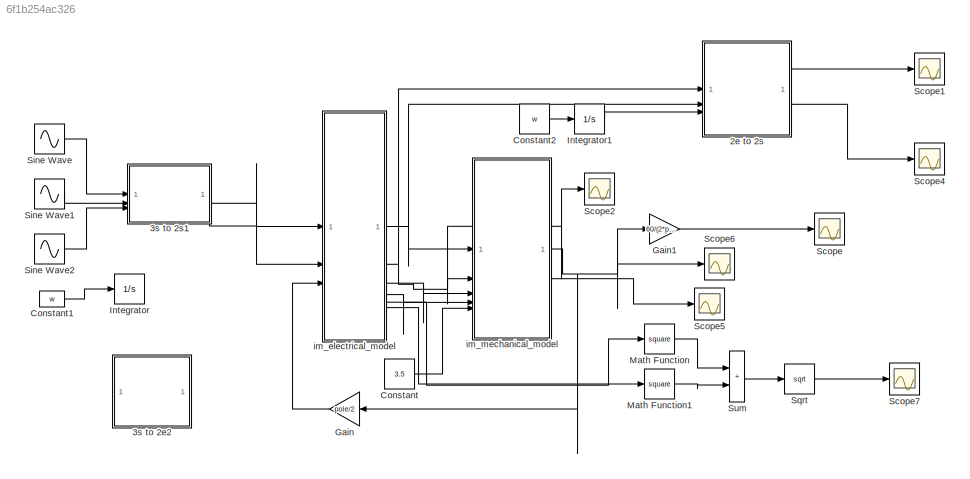
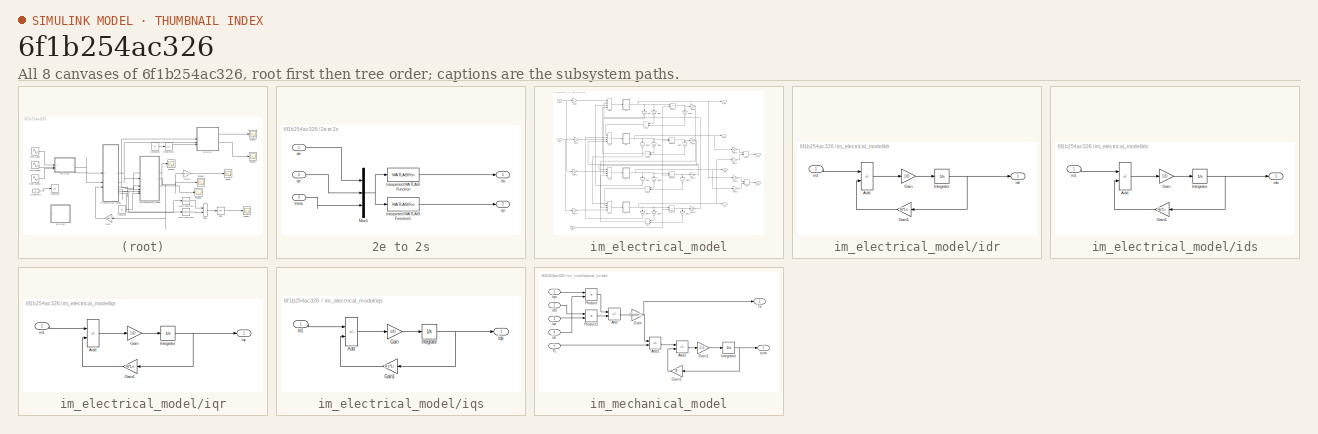
[diagram: thumbnail index - all 8 canvases of the model, root first then tree order]
MODEL slx_6f1b254ac326
KIND model
CONFIG AbsTol = auto
CONFIG EnableMultiTasking = off
CONFIG FixedStep = auto
CONFIG MaxStep = auto
CONFIG MinStep = auto
CONFIG RelTol = 1e-3
CONFIG SampleTimeConstraint = Unconstrained
CONFIG SolverName = VariableStepAuto
CONFIG StartTime = 0.0
CONFIG StopTime = 0.5
BLOCK [SubSystem] 2e to 2s
BLOCK [MATLABFcn] 2e to 2s/Interpreted MATLAB Function
  MATLABFcn = cos(u(3))*u(1)-sin(u(3))*u(2)
BLOCK [MATLABFcn] 2e to 2s/Interpreted MATLAB Function1
  MATLABFcn = sin(u(3))*u(1)+cos(u(3))*u(2)
BLOCK [Mux] 2e to 2s/Mux1
  DisplayOption = bar
  Inputs = 3
BLOCK [Inport] 2e to 2s/de
BLOCK [Outport] 2e to 2s/ds
BLOCK [Inport] 2e to 2s/qe
  Port = 2
BLOCK [Outport] 2e to 2s/qs
  Port = 2
BLOCK [Inport] 2e to 2s/theta
  Port = 3
BLOCK [SubSystem] 3s to 2e2
  PortSchema = {"entries":[{"content":{"sides":[{"content":{"connectorIds":["In1","In2","In3","In4"]},"type":"ConnectorPlacement.EquallySpacedRectSide","uuid":"f133be33-91f9-49ed-9811-9ea3b8c2cc59"},{"content":{"connectorIds":["Out2","Out1","Out3"],"side":"RIGHT"},"type":"ConnectorPlacement.EquallySpacedRectSide","uuid":"fabe9076-6ecf-4b28-bd28-ced1febe4377"},{"content":{"connectorIds":[],"side":"TOP"},"type":"C...<+272ch>
  ReferencedSubsystem = s3s_to_2e
BLOCK [SubSystem] 3s to 2s1
  ReferencedSubsystem = s3s_to_2s
BLOCK [Constant] Constant
  Value = 3.5
BLOCK [Constant] Constant1
  Value = w
BLOCK [Constant] Constant2
  Value = w
BLOCK [Gain] Gain
  Gain = pole/2
  NameLocation = top
BLOCK [Gain] Gain1
  Gain = 60/(2*pi)
BLOCK [Integrator] Integrator
BLOCK [Integrator] Integrator1
BLOCK [Math] Math Function
  Operator = square
BLOCK [Math] Math Function1
  Operator = square
BLOCK [Scope] Scope
  Floating = off
  NumInputPorts = 1
  ScopeSpecificationString = Simulink.scopes.TimeScopeBlockCfg('CurrentConfiguration', extmgr.ConfigurationSet(extmgr.Configuration('Core','General UI',true),extmgr.Configuration('Core','Source UI',true),extmgr.Configuration('Sources','WiredSimulink',true),extmgr.Configuration('Visuals','Time Domain',true,'SerializedDisplays',{struct('MinYLimReal','-233.05606','MaxYLimReal','2077.26704','YLabelReal','','MinYLimMag',' 0.00000'...<+1372ch>
BLOCK [Scope] Scope1
  Floating = off
  NumInputPorts = 1
  ScopeSpecificationString = Simulink.scopes.TimeScopeBlockCfg('CurrentConfiguration', extmgr.ConfigurationSet(extmgr.Configuration('Core','General UI',true),extmgr.Configuration('Core','Source UI',true),extmgr.Configuration('Sources','WiredSimulink',true,'DataLoggingVariableName','ScopeData1'),extmgr.Configuration('Visuals','Time Domain',true,'SerializedDisplays',{struct('MinYLimReal','-17.76493','MaxYLimReal','61.32138','YL...<+1404ch>
BLOCK [Scope] Scope2
  Floating = off
  NumInputPorts = 1
  ScopeSpecificationString = Simulink.scopes.TimeScopeBlockCfg('CurrentConfiguration', extmgr.ConfigurationSet(extmgr.Configuration('Core','General UI',true),extmgr.Configuration('Core','Source UI',true),extmgr.Configuration('Sources','WiredSimulink',true,'DataLoggingVariableName','ScopeData2'),extmgr.Configuration('Visuals','Time Domain',true,'SerializedDisplays',{struct('MinYLimReal','-41.87321','MaxYLimReal','9.03351','YLa...<+1384ch>
BLOCK [Scope] Scope4
  Floating = off
  NumInputPorts = 1
  ScopeSpecificationString = Simulink.scopes.TimeScopeBlockCfg('CurrentConfiguration', extmgr.ConfigurationSet(extmgr.Configuration('Core','General UI',true),extmgr.Configuration('Core','Source UI',true),extmgr.Configuration('Sources','WiredSimulink',true,'DataLoggingVariableName','ScopeData4'),extmgr.Configuration('Visuals','Time Domain',true,'SerializedDisplays',{struct('MinYLimReal','-123.73977','MaxYLimReal','130.51467','...<+1412ch>
BLOCK [Scope] Scope5
  Floating = off
  NumInputPorts = 1
  ScopeSpecificationString = Simulink.scopes.TimeScopeBlockCfg('CurrentConfiguration', extmgr.ConfigurationSet(extmgr.Configuration('Core','General UI',true),extmgr.Configuration('Core','Source UI',true),extmgr.Configuration('Sources','WiredSimulink',true,'DataLoggingVariableName','ScopeData5'),extmgr.Configuration('Visuals','Time Domain',true,'SerializedDisplays',{struct('MinYLimReal','-8.13075','MaxYLimReal','27.28306','YLa...<+1413ch>
BLOCK [Scope] Scope6
  Floating = off
  NumInputPorts = 1
  ScopeSpecificationString = Simulink.scopes.TimeScopeBlockCfg('CurrentConfiguration', extmgr.ConfigurationSet(extmgr.Configuration('Core','General UI',true),extmgr.Configuration('Core','Source UI',true),extmgr.Configuration('Sources','WiredSimulink',true,'DataLoggingVariableName','ScopeData6'),extmgr.Configuration('Visuals','Time Domain',true,'SerializedDisplays',{struct('MinYLimReal','-24.37549','MaxYLimReal','219.37938','Y...<+1419ch>
BLOCK [Scope] Scope7
  Floating = off
  NumInputPorts = 1
  ScopeSpecificationString = Simulink.scopes.TimeScopeBlockCfg('CurrentConfiguration', extmgr.ConfigurationSet(extmgr.Configuration('Core','General UI',true),extmgr.Configuration('Core','Source UI',true),extmgr.Configuration('Sources','WiredSimulink',true,'DataLoggingVariableName','ScopeData1'),extmgr.Configuration('Visuals','Time Domain',true,'SerializedDisplays',{struct('MinYLimReal','-0.09842','MaxYLimReal','0.88579','YLab...<+1392ch>
BLOCK [Sin] Sine Wave
  Amplitude = 220*1.414
  Frequency = 60*2*pi
BLOCK [Sin] Sine Wave1
  Amplitude = 220*1.414
  Frequency = 60*2*pi
  Phase = -2*pi/3
BLOCK [Sin] Sine Wave2
  Amplitude = 220*1.414
  Frequency = 60*2*pi
  Phase = 2*pi/3
BLOCK [Sqrt] Sqrt
BLOCK [Sum] Sum
  IconShape = rectangular
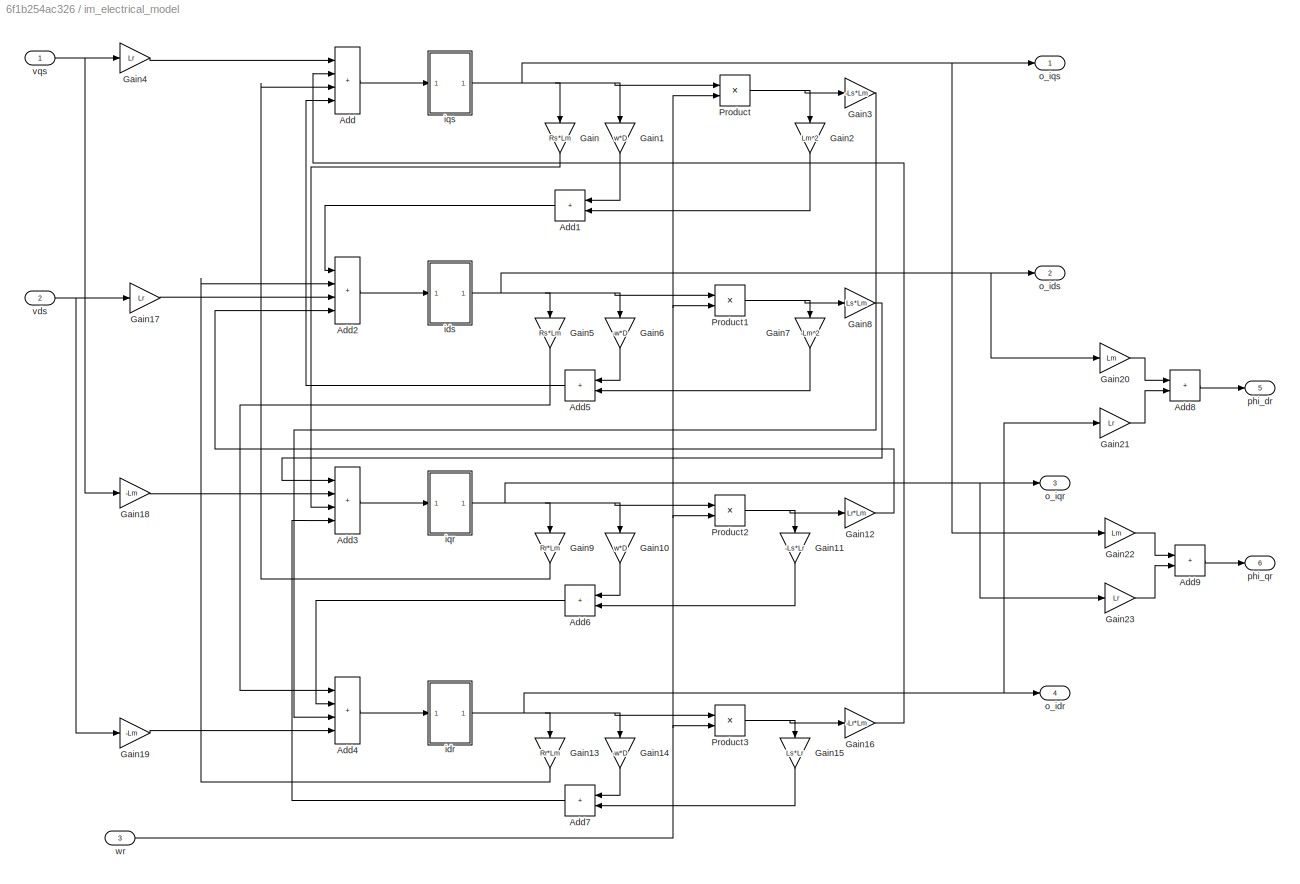
BLOCK [SubSystem] im_electrical_model
BLOCK [Sum] im_electrical_model/Add
  IconShape = rectangular
  Inputs = ++++
BLOCK [Sum] im_electrical_model/Add1
  IconShape = rectangular
  NameLocation = top
BLOCK [Sum] im_electrical_model/Add2
  IconShape = rectangular
  Inputs = ++++
BLOCK [Sum] im_electrical_model/Add3
  IconShape = rectangular
  Inputs = ++++
BLOCK [Sum] im_electrical_model/Add4
  IconShape = rectangular
  Inputs = ++++
BLOCK [Sum] im_electrical_model/Add5
  IconShape = rectangular
  NameLocation = top
BLOCK [Sum] im_electrical_model/Add6
  IconShape = rectangular
  NameLocation = top
BLOCK [Sum] im_electrical_model/Add7
  IconShape = rectangular
  NameLocation = top
BLOCK [Sum] im_electrical_model/Add8
  IconShape = rectangular
BLOCK [Sum] im_electrical_model/Add9
  IconShape = rectangular
BLOCK [Gain] im_electrical_model/Gain
  Gain = Rs*Lm
  NameLocation = left
BLOCK [Gain] im_electrical_model/Gain1
  Gain = w*D
  NameLocation = left
BLOCK [Gain] im_electrical_model/Gain10
  Gain = w*D
  NameLocation = left
BLOCK [Gain] im_electrical_model/Gain11
  Gain = -Ls*Lr
  NameLocation = left
BLOCK [Gain] im_electrical_model/Gain12
  Gain = Lr*Lm
BLOCK [Gain] im_electrical_model/Gain13
  Gain = Rr*Lm
  NameLocation = left
BLOCK [Gain] im_electrical_model/Gain14
  Gain = -w*D
  NameLocation = left
BLOCK [Gain] im_electrical_model/Gain15
  Gain = Ls*Lr
  NameLocation = left
BLOCK [Gain] im_electrical_model/Gain16
  Gain = -Lr*Lm
BLOCK [Gain] im_electrical_model/Gain17
  Gain = Lr
BLOCK [Gain] im_electrical_model/Gain18
  Gain = -Lm
BLOCK [Gain] im_electrical_model/Gain19
  Gain = -Lm
BLOCK [Gain] im_electrical_model/Gain2
  Gain = Lm^2
  NameLocation = left
BLOCK [Gain] im_electrical_model/Gain20
  Gain = Lm
BLOCK [Gain] im_electrical_model/Gain21
  Gain = Lr
BLOCK [Gain] im_electrical_model/Gain22
  Gain = Lm
BLOCK [Gain] im_electrical_model/Gain23
  Gain = Lr
BLOCK [Gain] im_electrical_model/Gain3
  Gain = -Ls*Lm
BLOCK [Gain] im_electrical_model/Gain4
  Gain = Lr
BLOCK [Gain] im_electrical_model/Gain5
  Gain = Rs*Lm
  NameLocation = left
BLOCK [Gain] im_electrical_model/Gain6
  Gain = -w*D
  NameLocation = left
BLOCK [Gain] im_electrical_model/Gain7
  Gain = -Lm^2
  NameLocation = left
BLOCK [Gain] im_electrical_model/Gain8
  Gain = Ls*Lm
BLOCK [Gain] im_electrical_model/Gain9
  Gain = Rr*Lm
  NameLocation = left
BLOCK [Product] im_electrical_model/Product
BLOCK [Product] im_electrical_model/Product1
BLOCK [Product] im_electrical_model/Product2
BLOCK [Product] im_electrical_model/Product3
BLOCK [SubSystem] im_electrical_model/idr
BLOCK [Sum] im_electrical_model/idr/Add
  IconShape = rectangular
  Inputs = +-
BLOCK [Gain] im_electrical_model/idr/Gain
  Gain = 1/D
BLOCK [Gain] im_electrical_model/idr/Gain1
  Gain = Rr*Ls
  NameLocation = top
BLOCK [Integrator] im_electrical_model/idr/Integrator
BLOCK [Outport] im_electrical_model/idr/idr
BLOCK [Inport] im_electrical_model/idr/in1
BLOCK [SubSystem] im_electrical_model/ids
BLOCK [Sum] im_electrical_model/ids/Add
  IconShape = rectangular
  Inputs = +-
BLOCK [Gain] im_electrical_model/ids/Gain
  Gain = 1/D
BLOCK [Gain] im_electrical_model/ids/Gain1
  Gain = Rs*Lr
  NameLocation = top
BLOCK [Integrator] im_electrical_model/ids/Integrator
BLOCK [Outport] im_electrical_model/ids/ids
BLOCK [Inport] im_electrical_model/ids/in1
BLOCK [SubSystem] im_electrical_model/iqr
BLOCK [Sum] im_electrical_model/iqr/Add
  IconShape = rectangular
  Inputs = +-
BLOCK [Gain] im_electrical_model/iqr/Gain
  Gain = 1/D
BLOCK [Gain] im_electrical_model/iqr/Gain1
  Gain = Rr*Ls
  NameLocation = top
BLOCK [Integrator] im_electrical_model/iqr/Integrator
BLOCK [Inport] im_electrical_model/iqr/in1
BLOCK [Outport] im_electrical_model/iqr/iqr
BLOCK [SubSystem] im_electrical_model/iqs
BLOCK [Sum] im_electrical_model/iqs/Add
  IconShape = rectangular
  Inputs = +-
BLOCK [Gain] im_electrical_model/iqs/Gain
  Gain = 1/D
BLOCK [Gain] im_electrical_model/iqs/Gain1
  Gain = Rs*Lr
  NameLocation = top
BLOCK [Integrator] im_electrical_model/iqs/Integrator
BLOCK [Inport] im_electrical_model/iqs/in1
BLOCK [Outport] im_electrical_model/iqs/iqs
BLOCK [Outport] im_electrical_model/o_idr
  Port = 4
BLOCK [Outport] im_electrical_model/o_ids
  Port = 2
BLOCK [Outport] im_electrical_model/o_iqr
  Port = 3
BLOCK [Outport] im_electrical_model/o_iqs
BLOCK [Outport] im_electrical_model/phi_dr
  Port = 5
BLOCK [Outport] im_electrical_model/phi_qr
  Port = 6
BLOCK [Inport] im_electrical_model/vds
  Port = 2
BLOCK [Inport] im_electrical_model/vqs
BLOCK [Inport] im_electrical_model/wr
  Port = 3
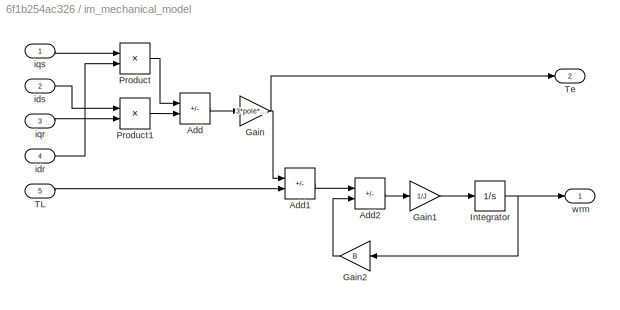
BLOCK [SubSystem] im_mechanical_model
BLOCK [Sum] im_mechanical_model/Add
  IconShape = rectangular
  Inputs = +-
BLOCK [Sum] im_mechanical_model/Add1
  IconShape = rectangular
  Inputs = +-
BLOCK [Sum] im_mechanical_model/Add2
  IconShape = rectangular
  Inputs = +-
BLOCK [Gain] im_mechanical_model/Gain
  Gain = 3*pole*Lm/4
BLOCK [Gain] im_mechanical_model/Gain1
  Gain = 1/J
BLOCK [Gain] im_mechanical_model/Gain2
  Gain = B
  NameLocation = top
BLOCK [Integrator] im_mechanical_model/Integrator
BLOCK [Product] im_mechanical_model/Product
BLOCK [Product] im_mechanical_model/Product1
BLOCK [Inport] im_mechanical_model/TL
  Port = 5
BLOCK [Outport] im_mechanical_model/Te
  Port = 2
BLOCK [Inport] im_mechanical_model/idr
  Port = 4
BLOCK [Inport] im_mechanical_model/ids
  Port = 2
BLOCK [Inport] im_mechanical_model/iqr
  Port = 3
BLOCK [Inport] im_mechanical_model/iqs
BLOCK [Outport] im_mechanical_model/wrm
LINE 2e to 2s/Interpreted MATLAB Function1:1 -> 2e to 2s/qs:1
LINE 2e to 2s/Interpreted MATLAB Function:1 -> 2e to 2s/ds:1
NET 2e to 2s/Mux1:1 -> 2e to 2s/Interpreted MATLAB Function1:1, 2e to 2s/Interpreted MATLAB Function:1
LINE 2e to 2s/de:1 -> 2e to 2s/Mux1:1
LINE 2e to 2s/qe:1 -> 2e to 2s/Mux1:2
LINE 2e to 2s/theta:1 -> 2e to 2s/Mux1:3
LINE 2e to 2s:1 -> Scope1:1
LINE 2e to 2s:2 -> Scope4:1
LINE 3s to 2s1:1 -> im_electrical_model:2
LINE 3s to 2s1:2 -> im_electrical_model:1
LINE Constant1:1 -> Integrator:1
LINE Constant2:1 -> Integrator1:1
LINE Constant:1 -> im_mechanical_model:5
LINE Gain1:1 -> Scope:1
LINE Gain:1 -> im_electrical_model:3
LINE Integrator1:1 -> 2e to 2s:3
LINE Math Function1:1 -> Sum:2
LINE Math Function:1 -> Sum:1
LINE Sine Wave1:1 -> 3s to 2s1:2
LINE Sine Wave2:1 -> 3s to 2s1:3
LINE Sine Wave:1 -> 3s to 2s1:1
LINE Sqrt:1 -> Scope7:1
LINE Sum:1 -> Sqrt:1
LINE im_electrical_model/Add1:1 -> im_electrical_model/Add2:1
LINE im_electrical_model/Add2:1 -> im_electrical_model/ids:1
LINE im_electrical_model/Add3:1 -> im_electrical_model/iqr:1
LINE im_electrical_model/Add4:1 -> im_electrical_model/idr:1
LINE im_electrical_model/Add5:1 -> im_electrical_model/Add:4
LINE im_electrical_model/Add6:1 -> im_electrical_model/Add4:2
LINE im_electrical_model/Add7:1 -> im_electrical_model/Add3:4
LINE im_electrical_model/Add8:1 -> im_electrical_model/phi_dr:1
LINE im_electrical_model/Add9:1 -> im_electrical_model/phi_qr:1
LINE im_electrical_model/Add:1 -> im_electrical_model/iqs:1
LINE im_electrical_model/Gain10:1 -> im_electrical_model/Add6:1
LINE im_electrical_model/Gain11:1 -> im_electrical_model/Add6:2
LINE im_electrical_model/Gain12:1 -> im_electrical_model/Add2:4
LINE im_electrical_model/Gain13:1 -> im_electrical_model/Add2:2
LINE im_electrical_model/Gain14:1 -> im_electrical_model/Add7:1
LINE im_electrical_model/Gain15:1 -> im_electrical_model/Add7:2
LINE im_electrical_model/Gain16:1 -> im_electrical_model/Add:2
LINE im_electrical_model/Gain17:1 -> im_electrical_model/Add2:3
LINE im_electrical_model/Gain18:1 -> im_electrical_model/Add3:2
LINE im_electrical_model/Gain19:1 -> im_electrical_model/Add4:4
LINE im_electrical_model/Gain1:1 -> im_electrical_model/Add1:1
LINE im_electrical_model/Gain20:1 -> im_electrical_model/Add8:1
LINE im_electrical_model/Gain21:1 -> im_electrical_model/Add8:2
LINE im_electrical_model/Gain22:1 -> im_electrical_model/Add9:1
LINE im_electrical_model/Gain23:1 -> im_electrical_model/Add9:2
LINE im_electrical_model/Gain2:1 -> im_electrical_model/Add1:2
LINE im_electrical_model/Gain3:1 -> im_electrical_model/Add4:3
LINE im_electrical_model/Gain4:1 -> im_electrical_model/Add:1
LINE im_electrical_model/Gain5:1 -> im_electrical_model/Add4:1
LINE im_electrical_model/Gain6:1 -> im_electrical_model/Add5:1
LINE im_electrical_model/Gain7:1 -> im_electrical_model/Add5:2
LINE im_electrical_model/Gain8:1 -> im_electrical_model/Add3:1
LINE im_electrical_model/Gain9:1 -> im_electrical_model/Add:3
LINE im_electrical_model/Gain:1 -> im_electrical_model/Add3:3
NET im_electrical_model/Product1:1 -> im_electrical_model/Gain7:1, im_electrical_model/Gain8:1
NET im_electrical_model/Product2:1 -> im_electrical_model/Gain11:1, im_electrical_model/Gain12:1
NET im_electrical_model/Product3:1 -> im_electrical_model/Gain15:1, im_electrical_model/Gain16:1
NET im_electrical_model/Product:1 -> im_electrical_model/Gain2:1, im_electrical_model/Gain3:1
LINE im_electrical_model/idr/Add:1 -> im_electrical_model/idr/Gain:1
LINE im_electrical_model/idr/Gain1:1 -> im_electrical_model/idr/Add:2
LINE im_electrical_model/idr/Gain:1 -> im_electrical_model/idr/Integrator:1
NET im_electrical_model/idr/Integrator:1 -> im_electrical_model/idr/Gain1:1, im_electrical_model/idr/idr:1
LINE im_electrical_model/idr/in1:1 -> im_electrical_model/idr/Add:1
NET im_electrical_model/idr:1 -> im_electrical_model/Gain13:1, im_electrical_model/Gain14:1, im_electrical_model/Gain21:1, im_electrical_model/Product3:1, im_electrical_model/o_idr:1
LINE im_electrical_model/ids/Add:1 -> im_electrical_model/ids/Gain:1
LINE im_electrical_model/ids/Gain1:1 -> im_electrical_model/ids/Add:2
LINE im_electrical_model/ids/Gain:1 -> im_electrical_model/ids/Integrator:1
NET im_electrical_model/ids/Integrator:1 -> im_electrical_model/ids/Gain1:1, im_electrical_model/ids/ids:1
LINE im_electrical_model/ids/in1:1 -> im_electrical_model/ids/Add:1
NET im_electrical_model/ids:1 -> im_electrical_model/Gain20:1, im_electrical_model/Gain5:1, im_electrical_model/Gain6:1, im_electrical_model/Product1:1, im_electrical_model/o_ids:1
LINE im_electrical_model/iqr/Add:1 -> im_electrical_model/iqr/Gain:1
LINE im_electrical_model/iqr/Gain1:1 -> im_electrical_model/iqr/Add:2
LINE im_electrical_model/iqr/Gain:1 -> im_electrical_model/iqr/Integrator:1
NET im_electrical_model/iqr/Integrator:1 -> im_electrical_model/iqr/Gain1:1, im_electrical_model/iqr/iqr:1
LINE im_electrical_model/iqr/in1:1 -> im_electrical_model/iqr/Add:1
NET im_electrical_model/iqr:1 -> im_electrical_model/Gain10:1, im_electrical_model/Gain23:1, im_electrical_model/Gain9:1, im_electrical_model/Product2:1, im_electrical_model/o_iqr:1
LINE im_electrical_model/iqs/Add:1 -> im_electrical_model/iqs/Gain:1
LINE im_electrical_model/iqs/Gain1:1 -> im_electrical_model/iqs/Add:2
LINE im_electrical_model/iqs/Gain:1 -> im_electrical_model/iqs/Integrator:1
NET im_electrical_model/iqs/Integrator:1 -> im_electrical_model/iqs/Gain1:1, im_electrical_model/iqs/iqs:1
LINE im_electrical_model/iqs/in1:1 -> im_electrical_model/iqs/Add:1
NET im_electrical_model/iqs:1 -> im_electrical_model/Gain1:1, im_electrical_model/Gain22:1, im_electrical_model/Gain:1, im_electrical_model/Product:1, im_electrical_model/o_iqs:1
NET im_electrical_model/vds:1 -> im_electrical_model/Gain17:1, im_electrical_model/Gain19:1
NET im_electrical_model/vqs:1 -> im_electrical_model/Gain18:1, im_electrical_model/Gain4:1
NET im_electrical_model/wr:1 -> im_electrical_model/Product1:2, im_electrical_model/Product2:2, im_electrical_model/Product3:2, im_electrical_model/Product:2
NET im_electrical_model:1 -> 2e to 2s:2, im_mechanical_model:1
NET im_electrical_model:2 -> 2e to 2s:1, Scope2:1, im_mechanical_model:2
LINE im_electrical_model:3 -> im_mechanical_model:3
LINE im_electrical_model:4 -> im_mechanical_model:4
LINE im_electrical_model:5 -> Math Function:1
LINE im_electrical_model:6 -> Math Function1:1
LINE im_mechanical_model/Add1:1 -> im_mechanical_model/Add2:1
LINE im_mechanical_model/Add2:1 -> im_mechanical_model/Gain1:1
LINE im_mechanical_model/Add:1 -> im_mechanical_model/Gain:1
LINE im_mechanical_model/Gain1:1 -> im_mechanical_model/Integrator:1
LINE im_mechanical_model/Gain2:1 -> im_mechanical_model/Add2:2
NET im_mechanical_model/Gain:1 -> im_mechanical_model/Add1:1, im_mechanical_model/Te:1
NET im_mechanical_model/Integrator:1 -> im_mechanical_model/Gain2:1, im_mechanical_model/wrm:1
LINE im_mechanical_model/Product1:1 -> im_mechanical_model/Add:2
LINE im_mechanical_model/Product:1 -> im_mechanical_model/Add:1
LINE im_mechanical_model/TL:1 -> im_mechanical_model/Add1:2
LINE im_mechanical_model/idr:1 -> im_mechanical_model/Product:2
LINE im_mechanical_model/ids:1 -> im_mechanical_model/Product1:1
LINE im_mechanical_model/iqr:1 -> im_mechanical_model/Product1:2
LINE im_mechanical_model/iqs:1 -> im_mechanical_model/Product:1
NET im_mechanical_model:1 -> Gain1:1, Gain:1, Scope6:1
LINE im_mechanical_model:2 -> Scope5:1
note: NET lines group one-source signal fan-out (src -> all destinations, sorted); 1:1 wires keep LINE
